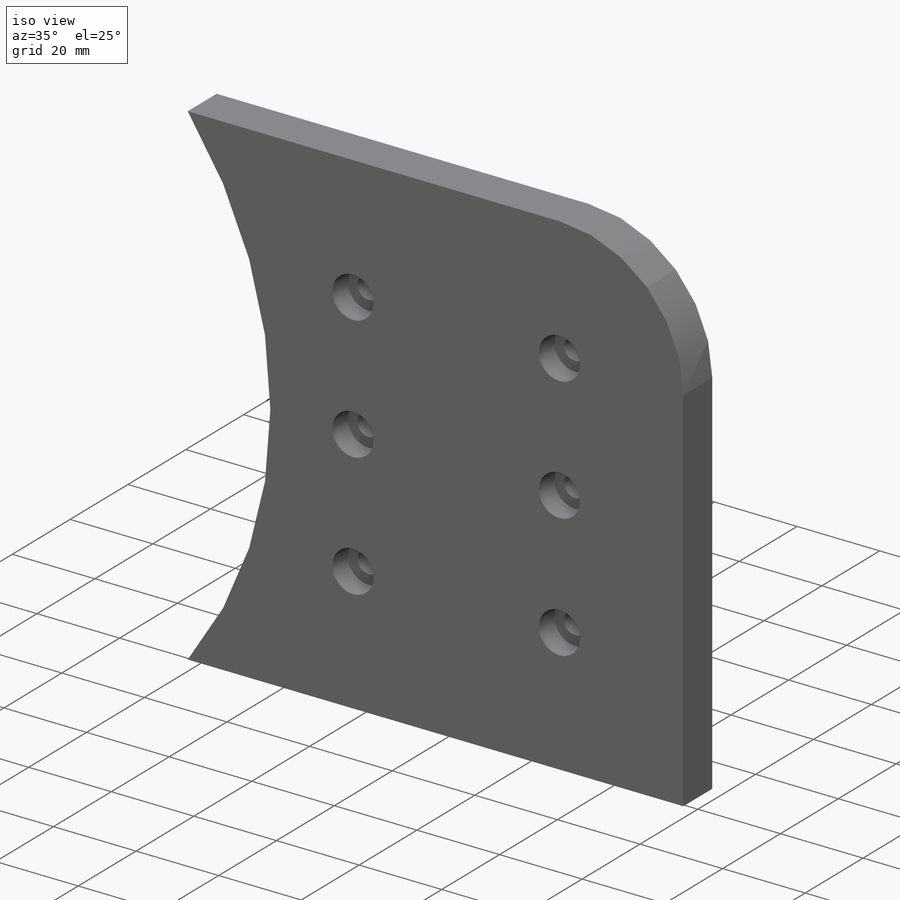
[diagram: iso view]
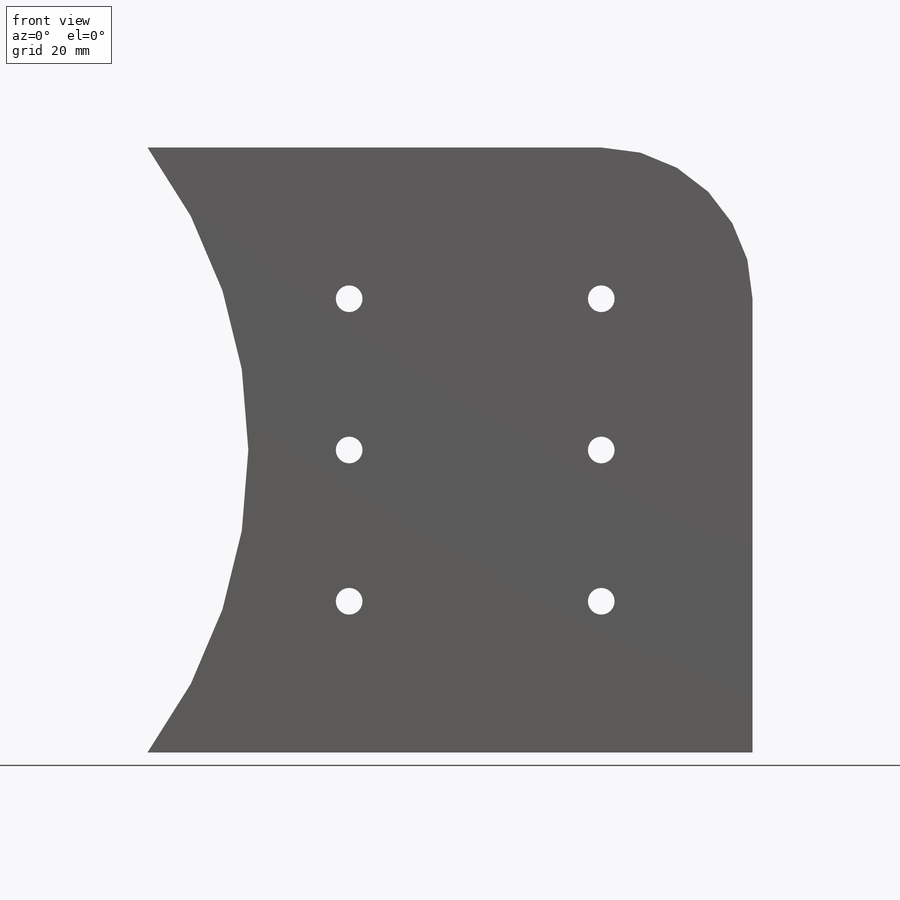
[diagram: front view]
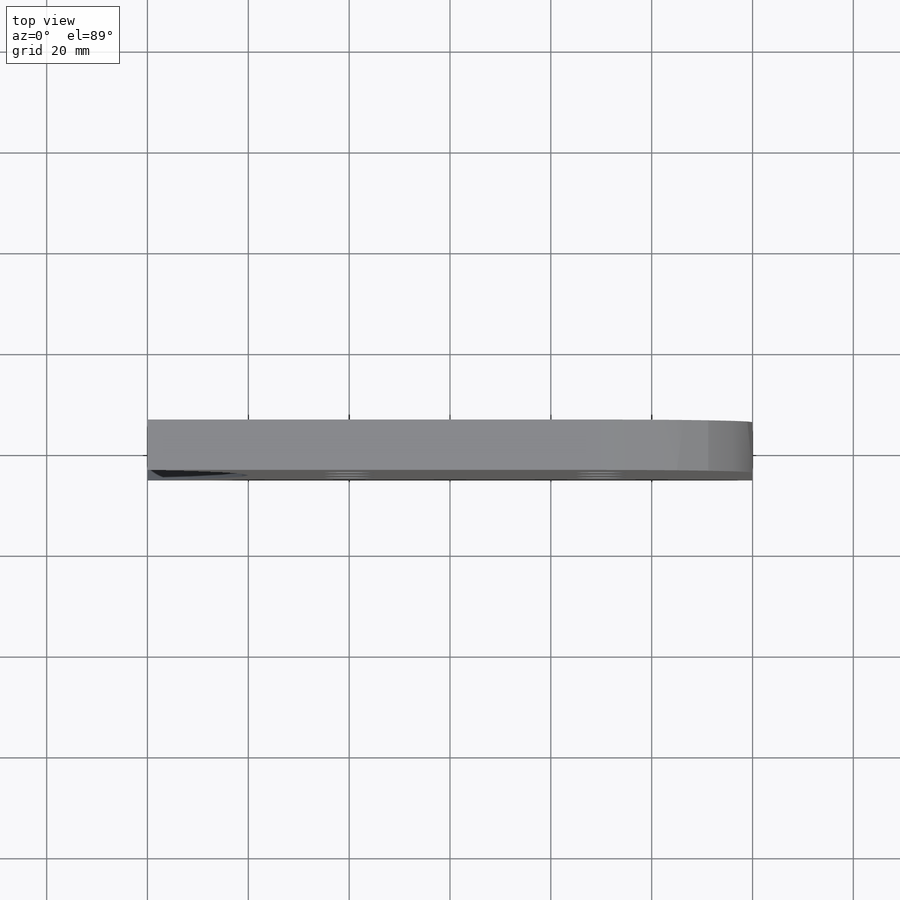
[diagram: top view]
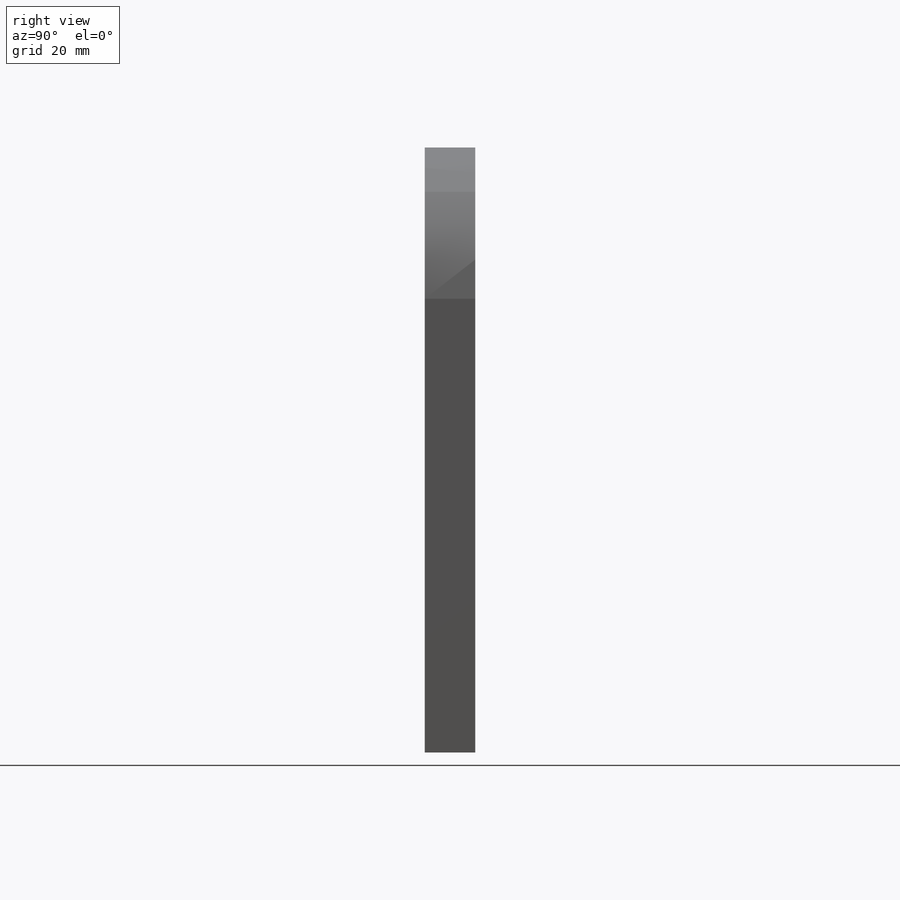
[diagram: right view]
SOLIDWORKS PART (.sldprt)
format: sldprt  version: not decoded by parser v0  size: 228,352 bytes
history: native  units: mm
features: plane x3, sketch x3, material x1, extrude x1, fillet x1, hole x1, pattern_linear x1 (+9 scaffold rows collapsed)
feature tree (20):
  scaffold x9  (default folders/planes/origin — collapsed)
  material  "Material <nicht festgelegt>"
  plane  "Vorne"
  plane  "Oben"
  plane  "Rechts"
  sketch  "Skizze1"  dims[c1.D3=50.0mm c1.D1=50.0mm c1.D2=90.0mm c2.D1=100.0mm c2.D2=120.0mm]
  extrude  "Aufsatz-Linear austragen1"  Depth=10mm
  fillet  "Verrundung1"  Radius=30mm
  hole  "Stirnsenkung für M5 Zylinderschraube mit Innensechskant1"  Diameter=5.3mm Depth=10mm
  sketch  "Skizze5"
  sketch  "Skizze4"  dims[hole-wizard template sketch: 41 standard entries collapsed; hole parameters kept: c12.Bohrerdurchmesser=5.3mm c12.Bohrungstiefe=10.0mm c12.Senkdurchmesser2=10.0mm c12.Senktiefe2=5.4mm]
  pattern_linear  "Lineares Muster1"  Count1=3 Count2=2 Spacing1=30mm Spacing2=50mm
decode coverage: 6 of 7 modeling features carry decoded parameters
note: ~ marks probable driven/reference dimensions
note: suppression state not decoded; provenance and decode notes live in map.json
